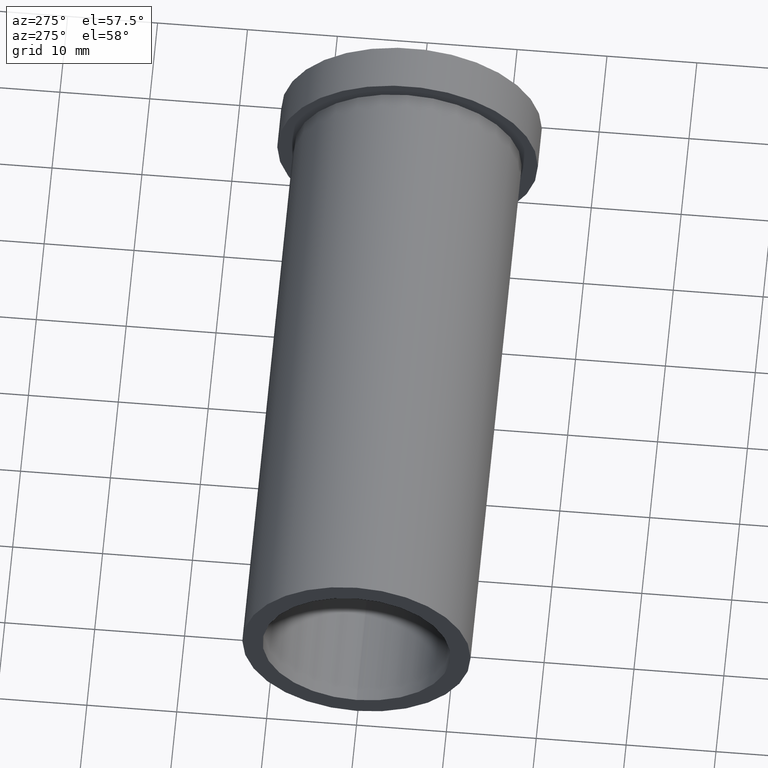
[diagram: clean part render]
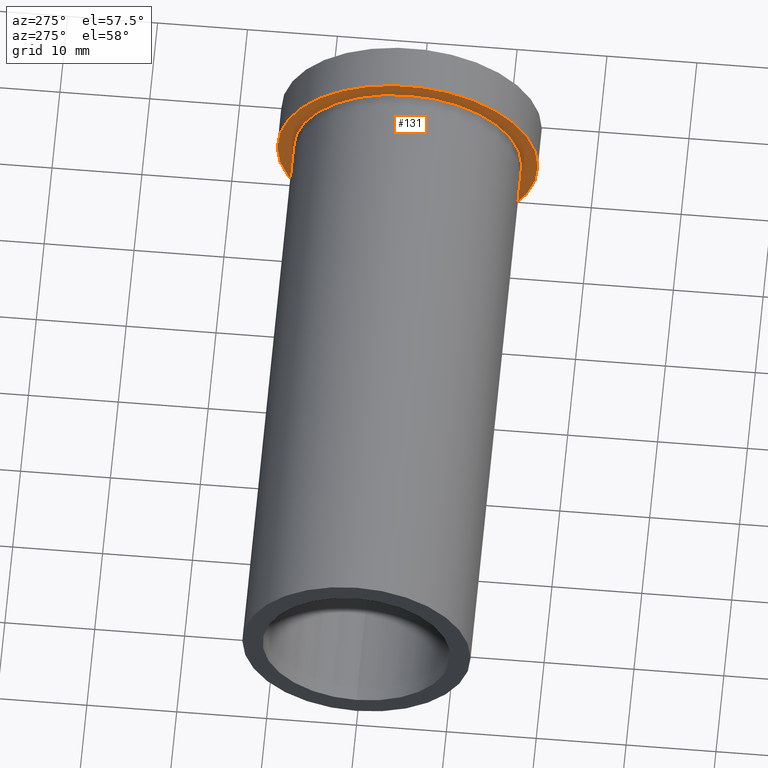
[diagram: same view with one face highlighted and labeled with its STEP entity id]
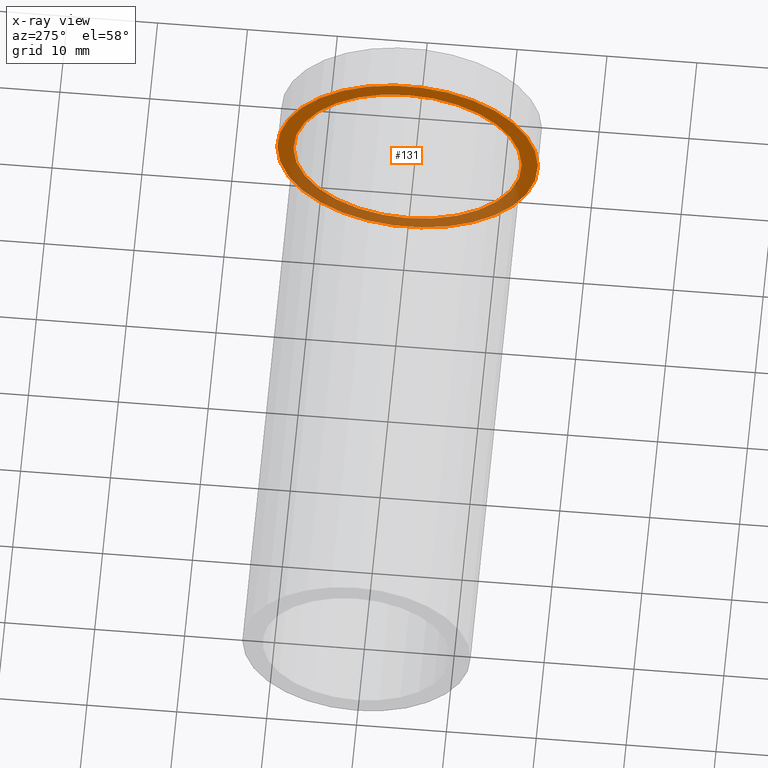
[diagram: x-ray of the same camera — body ghosted, the highlighted face saturated]
A machine part, auxiliary view. The second image highlights one B-rep face of the part: STEP entity #131.
The next image is the same camera in x-ray: the body ghosted, the highlighted face saturated — about 38% of this face is hidden behind the body in this view.
In plain terms, the highlighted planar face has unit normal (-1, 0, 0).
Its self-contained STEP definition (entity closure, byte-faithful):
#15=FACE_BOUND('',#37,.T.);
#20=PLANE('',#166);
#26=FACE_OUTER_BOUND('',#36,.T.);
#36=EDGE_LOOP('',(#99));
#37=EDGE_LOOP('',(#100));
#62=CIRCLE('',#167,14.5);
#63=CIRCLE('',#168,12.7);
#72=VERTEX_POINT('',#238);
#73=VERTEX_POINT('',#240);
#83=EDGE_CURVE('',#72,#72,#62,.T.);
#84=EDGE_CURVE('',#73,#73,#63,.T.);
#99=ORIENTED_EDGE('',*,*,#83,.F.);
#100=ORIENTED_EDGE('',*,*,#84,.T.);
#131=ADVANCED_FACE('',(#26,#15),#20,.T.);
#166=AXIS2_PLACEMENT_3D('',#237,#192,#193);
#167=AXIS2_PLACEMENT_3D('',#239,#194,#195);
#168=AXIS2_PLACEMENT_3D('',#241,#196,#197);
#192=DIRECTION('center_axis',(-1.,0.,0.));
#193=DIRECTION('ref_axis',(0.,0.,1.));
#194=DIRECTION('center_axis',(1.,0.,0.));
#195=DIRECTION('ref_axis',(0.,0.,-1.));
#196=DIRECTION('center_axis',(1.,0.,0.));
#197=DIRECTION('ref_axis',(0.,0.,-1.));
#237=CARTESIAN_POINT('Origin',(-5.,14.5,0.));
#238=CARTESIAN_POINT('',(-5.,-14.5,-1.77573785876366E-15));
#239=CARTESIAN_POINT('Origin',(-5.,0.,0.));
#240=CARTESIAN_POINT('',(-5.,-12.7,-1.55530143491714E-15));
#241=CARTESIAN_POINT('Origin',(-5.,0.,0.));